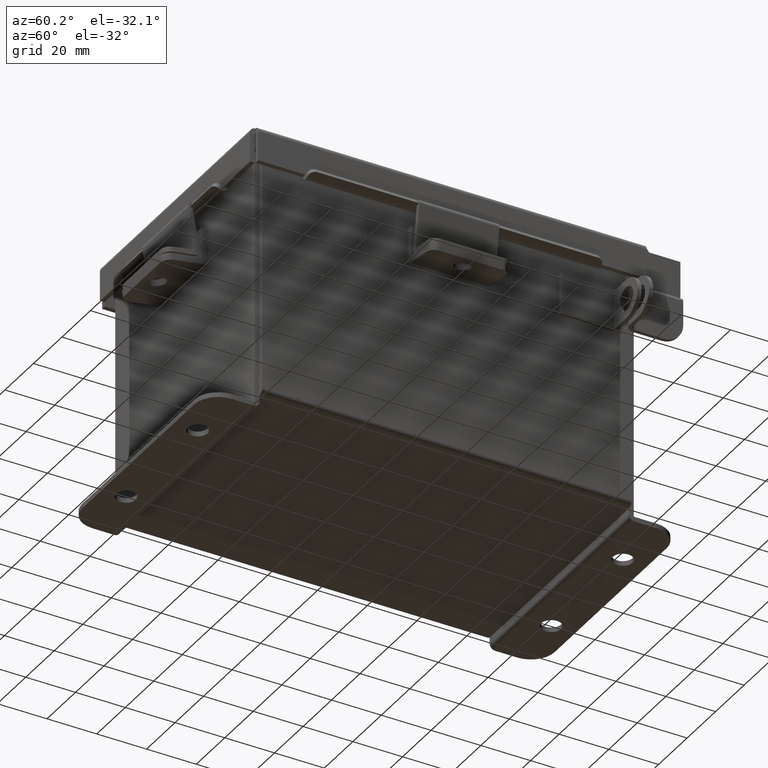
[diagram: clean part render]
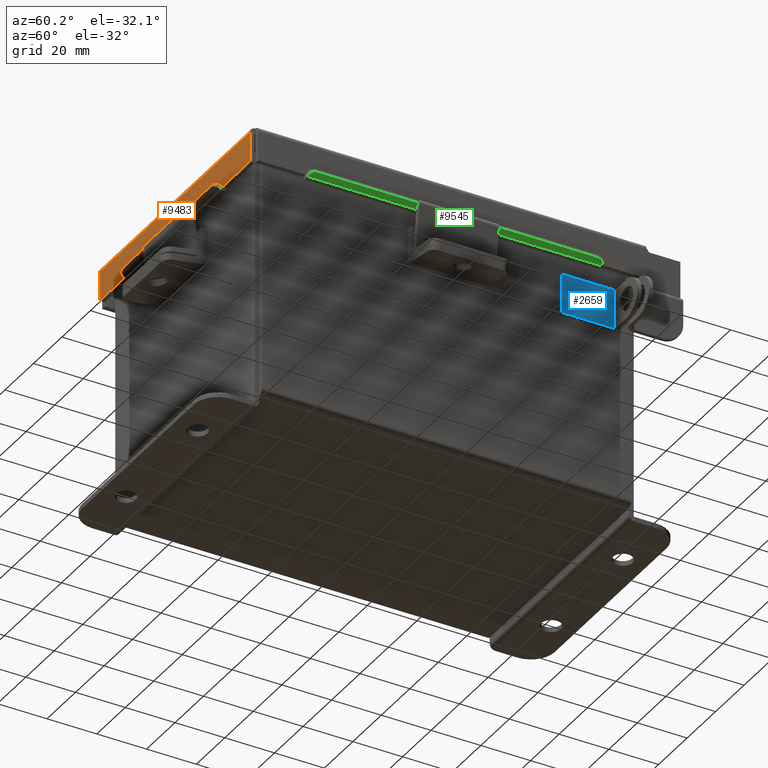
[diagram: same view with three faces highlighted in distinct colors, each labeled with its STEP entity id]
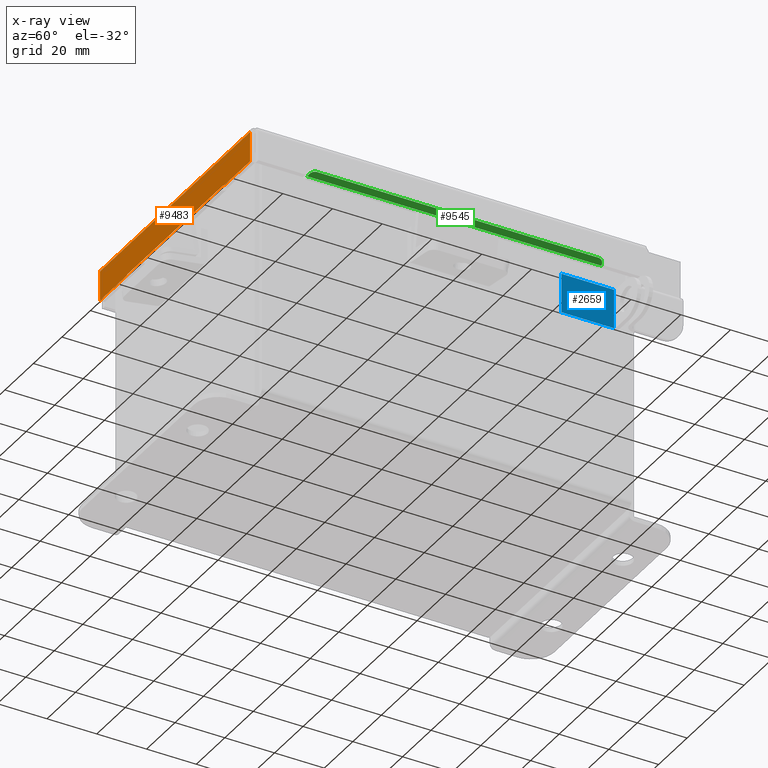
[diagram: x-ray of the same camera — body ghosted, the three highlighted faces saturated]
A machine part, auxiliary view with three faces highlighted in distinct colors.
The next image is the same camera in x-ray (body ghosted, the three faces saturated) — at least one of them is partly hidden behind the body in this view.
Their STEP definitions:

[orange] entity #9483 — the highlighted planar face has unit normal (0, 1, -0).
#28 = CARTESIAN_POINT ( 'NONE',  ( -2.156250000000000400, -3.156250000000000000, 0.01299999999999986400 ) ) ;
#53 = DIRECTION ( 'NONE',  ( -1.000000000000000000, -1.094764425253763600E-047, 1.583679996327109400E-017 ) ) ;
#245 = CARTESIAN_POINT ( 'NONE',  ( -2.074478932188136100, -3.156250000000001800, 0.4872999999999997900 ) ) ;
#318 = VERTEX_POINT ( 'NONE', #6665 ) ;
#362 = VECTOR ( 'NONE', #1654, 39.37007874015748100 ) ;
#467 = EDGE_CURVE ( 'NONE', #8443, #10788, #12384, .T. ) ;
#473 = DIRECTION ( 'NONE',  ( 0.0000000000000000000, 3.504962610060450200E-014, 1.000000000000000000 ) ) ;
#737 = DIRECTION ( 'NONE',  ( -0.0000000000000000000, -3.363654414526078100E-015, 1.000000000000000000 ) ) ;
#1452 = CARTESIAN_POINT ( 'NONE',  ( -1.681319291547108300E-031, -3.156250000000000000, -1.087734790185951700E-014 ) ) ;
#1526 = VECTOR ( 'NONE', #53, 39.37007874015748100 ) ;
#1654 = DIRECTION ( 'NONE',  ( 0.0000000000000000000, -3.363654414526078100E-015, 1.000000000000000000 ) ) ;
#2273 = LINE ( 'NONE', #5760, #7704 ) ;
#2475 = CARTESIAN_POINT ( 'NONE',  ( -1.324478932188136100, -3.156250000000002200, 0.4717115427318800400 ) ) ;
#2569 = DIRECTION ( 'NONE',  ( 0.0000000000000000000, -3.363654414526077700E-015, 1.000000000000000000 ) ) ;
#2608 = VECTOR ( 'NONE', #473, 39.37007874015748100 ) ;
#2626 = VERTEX_POINT ( 'NONE', #5491 ) ;
#2682 = VERTEX_POINT ( 'NONE', #6688 ) ;
#2965 = CARTESIAN_POINT ( 'NONE',  ( -1.324478932188136100, -3.156250000000001800, 0.4872999999999997900 ) ) ;
#3299 = LINE ( 'NONE', #9255, #362 ) ;
#3379 = VECTOR ( 'NONE', #11845, 39.37007874015748100 ) ;
#3500 = EDGE_CURVE ( 'NONE', #318, #4780, #10784, .T. ) ;
#3605 = FACE_OUTER_BOUND ( 'NONE', #10821, .T. ) ;
#3624 = PLANE ( 'NONE',  #12317 ) ;
#4405 = ORIENTED_EDGE ( 'NONE', *, *, #13896, .F. ) ;
#4664 = ORIENTED_EDGE ( 'NONE', *, *, #3500, .F. ) ;
#4673 = DIRECTION ( 'NONE',  ( 1.000000000000000000, 0.0000000000000000000, 0.0000000000000000000 ) ) ;
#4780 = VERTEX_POINT ( 'NONE', #10872 ) ;
#4978 = ORIENTED_EDGE ( 'NONE', *, *, #467, .T. ) ;
#5110 = LINE ( 'NONE', #12663, #13367 ) ;
#5491 = CARTESIAN_POINT ( 'NONE',  ( 2.074478932188135200, -3.156250000000001800, 0.4872999999999997300 ) ) ;
#5506 = DIRECTION ( 'NONE',  ( -1.000000000000000000, 5.326952210842322800E-032, 1.741613323795413600E-046 ) ) ;
#5511 = EDGE_CURVE ( 'NONE', #2682, #2626, #3299, .T. ) ;
#5760 = CARTESIAN_POINT ( 'NONE',  ( -1.324478932188136100, -3.156250000000001800, 0.4872999999999999600 ) ) ;
#6096 = EDGE_CURVE ( 'NONE', #4780, #12791, #9052, .T. ) ;
#6281 = LINE ( 'NONE', #9728, #3379 ) ;
#6646 = CARTESIAN_POINT ( 'NONE',  ( 7.717272622102004900E-018, -3.156250000000001800, 0.4872999999999997900 ) ) ;
#6665 = CARTESIAN_POINT ( 'NONE',  ( -1.324478932188136100, -3.156250000000001800, 0.4717115427318800400 ) ) ;
#6688 = CARTESIAN_POINT ( 'NONE',  ( 2.074478932188134700, -3.156250000000000000, 0.01299999999999986400 ) ) ;
#6854 = DIRECTION ( 'NONE',  ( 0.0000000000000000000, -3.504962610060450200E-014, -1.000000000000000000 ) ) ;
#7249 = ORIENTED_EDGE ( 'NONE', *, *, #10974, .F. ) ;
#7704 = VECTOR ( 'NONE', #6854, 39.37007874015748100 ) ;
#7827 = VECTOR ( 'NONE', #5506, 39.37007874015748100 ) ;
#7904 = VECTOR ( 'NONE', #4673, 39.37007874015748100 ) ;
#7972 = CARTESIAN_POINT ( 'NONE',  ( -2.074478932188136100, -3.156250000000000000, 0.01299999999999985900 ) ) ;
#8443 = VERTEX_POINT ( 'NONE', #2965 ) ;
#8548 = ORIENTED_EDGE ( 'NONE', *, *, #6096, .F. ) ;
#9052 = LINE ( 'NONE', #13676, #2608 ) ;
#9051 = DIRECTION ( 'NONE',  ( 5.326952210842322800E-032, 1.000000000000000000, 3.363654414526077700E-015 ) ) ;
#9255 = CARTESIAN_POINT ( 'NONE',  ( 2.074478932188135200, -3.156250000000000000, -1.087734790185951700E-014 ) ) ;
#9274 = EDGE_CURVE ( 'NONE', #2682, #13310, #13591, .T. ) ;
#9483 = ADVANCED_FACE ( 'NONE', ( #3605 ), #3624, .F. ) ;
#9655 = ORIENTED_EDGE ( 'NONE', *, *, #9274, .F. ) ;
#9728 = CARTESIAN_POINT ( 'NONE',  ( 7.717272622102004900E-018, -3.156250000000001800, 0.4872999999999997900 ) ) ;
#10448 = CARTESIAN_POINT ( 'NONE',  ( 1.324478932188135200, -3.156250000000001800, 0.4872999999999997900 ) ) ;
#10784 = LINE ( 'NONE', #2475, #7904 ) ;
#10788 = VERTEX_POINT ( 'NONE', #245 ) ;
#10821 = EDGE_LOOP ( 'NONE', ( #4405, #4978, #7249, #9655, #13023, #11647, #8548, #4664 ) ) ;
#10872 = CARTESIAN_POINT ( 'NONE',  ( 1.324478932188134900, -3.156250000000001800, 0.4717115427318800400 ) ) ;
#10974 = EDGE_CURVE ( 'NONE', #13310, #10788, #5110, .T. ) ;
#11184 = EDGE_CURVE ( 'NONE', #2626, #12791, #6281, .T. ) ;
#11647 = ORIENTED_EDGE ( 'NONE', *, *, #11184, .T. ) ;
#11845 = DIRECTION ( 'NONE',  ( -1.000000000000000000, -1.094764425253763600E-047, 1.583679996327109400E-017 ) ) ;
#12317 = AXIS2_PLACEMENT_3D ( 'NONE', #1452, #9051, #2569 ) ;
#12384 = LINE ( 'NONE', #6646, #1526 ) ;
#12663 = CARTESIAN_POINT ( 'NONE',  ( -2.074478932188136100, -3.156250000000000000, -2.512649847650985800E-016 ) ) ;
#12791 = VERTEX_POINT ( 'NONE', #10448 ) ;
#13023 = ORIENTED_EDGE ( 'NONE', *, *, #5511, .T. ) ;
#13310 = VERTEX_POINT ( 'NONE', #7972 ) ;
#13367 = VECTOR ( 'NONE', #737, 39.37007874015748100 ) ;
#13591 = LINE ( 'NONE', #28, #7827 ) ;
#13676 = CARTESIAN_POINT ( 'NONE',  ( 1.324478932188134900, -3.156250000000002200, 0.4717115427318800400 ) ) ;
#13896 = EDGE_CURVE ( 'NONE', #8443, #318, #2273, .T. ) ;

[blue] entity #2659 — the highlighted planar face has unit normal (1, 0, -0).
#456 = VECTOR ( 'NONE', #4053, 39.37007874015748100 ) ;
#515 = VERTEX_POINT ( 'NONE', #2347 ) ;
#599 = ORIENTED_EDGE ( 'NONE', *, *, #972, .F. ) ;
#780 = FACE_OUTER_BOUND ( 'NONE', #2353, .T. ) ;
#972 = EDGE_CURVE ( 'NONE', #6104, #2010, #4419, .T. ) ;
#1061 = VECTOR ( 'NONE', #5906, 39.37007874015748100 ) ;
#1187 = DIRECTION ( 'NONE',  ( 0.0000000000000000000, 1.000000000000000000, -1.116328697135877400E-032 ) ) ;
#1515 = VECTOR ( 'NONE', #7421, 39.37007874015748100 ) ;
#1588 = EDGE_CURVE ( 'NONE', #4048, #6104, #9150, .T. ) ;
#2010 = VERTEX_POINT ( 'NONE', #5541 ) ;
#2347 = CARTESIAN_POINT ( 'NONE',  ( 0.6250000000000000000, 0.0000000000000000000, -0.8499999999999949800 ) ) ;
#2353 = EDGE_LOOP ( 'NONE', ( #599, #6077, #10669, #10804 ) ) ;
#2659 = ADVANCED_FACE ( 'NONE', ( #780 ), #13086, .T. ) ;
#3291 = DIRECTION ( 'NONE',  ( -1.000000000000000000, 0.0000000000000000000, 0.0000000000000000000 ) ) ;
#3720 = CARTESIAN_POINT ( 'NONE',  ( 0.6250000000000000000, 0.0000000000000000000, 0.0000000000000000000 ) ) ;
#3743 = VECTOR ( 'NONE', #3291, 39.37007874015748100 ) ;
#3998 = LINE ( 'NONE', #3720, #1061 ) ;
#4048 = VERTEX_POINT ( 'NONE', #11976 ) ;
#4053 = DIRECTION ( 'NONE',  ( -1.000000000000000000, 0.0000000000000000000, 0.0000000000000000000 ) ) ;
#4414 = LINE ( 'NONE', #8693, #3743 ) ;
#4419 = LINE ( 'NONE', #6351, #1515 ) ;
#5419 = EDGE_CURVE ( 'NONE', #4048, #515, #3998, .T. ) ;
#5530 = CARTESIAN_POINT ( 'NONE',  ( 0.6250000000000000000, 0.0000000000000000000, 0.0000000000000000000 ) ) ;
#5541 = CARTESIAN_POINT ( 'NONE',  ( 0.0000000000000000000, 0.0000000000000000000, -0.8499999999999975400 ) ) ;
#5906 = DIRECTION ( 'NONE',  ( 0.0000000000000000000, -1.116328697135877400E-032, -1.000000000000000000 ) ) ;
#6077 = ORIENTED_EDGE ( 'NONE', *, *, #1588, .F. ) ;
#6104 = VERTEX_POINT ( 'NONE', #10240 ) ;
#6237 = CARTESIAN_POINT ( 'NONE',  ( 0.6250000000000000000, 0.0000000000000000000, -0.01300000000000010700 ) ) ;
#6351 = CARTESIAN_POINT ( 'NONE',  ( 0.0000000000000000000, 0.0000000000000000000, 0.0000000000000000000 ) ) ;
#7421 = DIRECTION ( 'NONE',  ( 0.0000000000000000000, -1.116328697135877400E-032, -1.000000000000000000 ) ) ;
#8693 = CARTESIAN_POINT ( 'NONE',  ( 0.6250000000000000000, 0.0000000000000000000, -0.8499999999999949800 ) ) ;
#8803 = DIRECTION ( 'NONE',  ( 0.0000000000000000000, 1.116328697135877400E-032, 1.000000000000000000 ) ) ;
#9150 = LINE ( 'NONE', #6237, #456 ) ;
#9871 = AXIS2_PLACEMENT_3D ( 'NONE', #5530, #1187, #8803 ) ;
#10240 = CARTESIAN_POINT ( 'NONE',  ( 0.0000000000000000000, 0.0000000000000000000, -0.01300000000000010700 ) ) ;
#10593 = EDGE_CURVE ( 'NONE', #515, #2010, #4414, .T. ) ;
#10669 = ORIENTED_EDGE ( 'NONE', *, *, #5419, .T. ) ;
#10804 = ORIENTED_EDGE ( 'NONE', *, *, #10593, .T. ) ;
#11976 = CARTESIAN_POINT ( 'NONE',  ( 0.6250000000000000000, 0.0000000000000000000, -0.01300000000000010700 ) ) ;
#13086 = PLANE ( 'NONE',  #9871 ) ;

[green] entity #9545 — the highlighted planar face has unit normal (-0.5, -0, 0.866).
#266 = CARTESIAN_POINT ( 'NONE',  ( -2.193600000000002700, -2.324478932188135200, 0.5519920976626970800 ) ) ;
#422 = VERTEX_POINT ( 'NONE', #14080 ) ;
#593 = CARTESIAN_POINT ( 'NONE',  ( -2.298056350946112500, 2.224478932188135500, 0.4916841953253944200 ) ) ;
#645 = CARTESIAN_POINT ( 'NONE',  ( -2.211453810567668700, -2.224478932188135100, 0.5416841953253945800 ) ) ;
#798 = ORIENTED_EDGE ( 'NONE', *, *, #11923, .T. ) ;
#1288 = LINE ( 'NONE', #266, #3878 ) ;
#1378 = LINE ( 'NONE', #3816, #6849 ) ;
#1388 = DIRECTION ( 'NONE',  ( 0.8660254037844379300, -0.0000000000000000000, 0.5000000000000012200 ) ) ;
#1756 = DIRECTION ( 'NONE',  ( -0.8660254037844379300, 0.0000000000000000000, -0.5000000000000012200 ) ) ;
#2445 = EDGE_CURVE ( 'NONE', #5131, #8848, #2513, .T. ) ;
#2513 = CIRCLE ( 'NONE', #13519, 0.1000000000000000600 ) ;
#2727 = DIRECTION ( 'NONE',  ( 5.088989469919020400E-017, -1.000000000000000000, 2.938129440360927100E-017 ) ) ;
#2882 = CIRCLE ( 'NONE', #12655, 0.1000000000000000600 ) ;
#2936 = CARTESIAN_POINT ( 'NONE',  ( -2.211453810567668700, 2.224478932188135500, 0.5416841953253944700 ) ) ;
#3758 = PLANE ( 'NONE',  #11593 ) ;
#3816 = CARTESIAN_POINT ( 'NONE',  ( -2.207100000000002300, -9.632984878683562000E-017, 0.5441978690286370900 ) ) ;
#3878 = VECTOR ( 'NONE', #1388, 39.37007874015748100 ) ;
#4019 = ORIENTED_EDGE ( 'NONE', *, *, #7369, .T. ) ;
#4037 = DIRECTION ( 'NONE',  ( -0.8660254037844379300, 2.731847993664261600E-015, -0.5000000000000012200 ) ) ;
#4143 = CARTESIAN_POINT ( 'NONE',  ( -2.207100000000003200, -2.324478932188135200, 0.5441978690286367600 ) ) ;
#5131 = VERTEX_POINT ( 'NONE', #8283 ) ;
#5947 = DIRECTION ( 'NONE',  ( 0.5000000000000012200, 0.0000000000000000000, -0.8660254037844379300 ) ) ;
#6312 = VECTOR ( 'NONE', #12250, 39.37007874015748100 ) ;
#6343 = CARTESIAN_POINT ( 'NONE',  ( -2.207100000000002700, 2.324478932188135600, 0.5441978690286368700 ) ) ;
#6557 = ORIENTED_EDGE ( 'NONE', *, *, #8788, .F. ) ;
#6849 = VECTOR ( 'NONE', #2727, 39.37007874015748100 ) ;
#6988 = CARTESIAN_POINT ( 'NONE',  ( -0.7874195896320819200, 0.0000000000000000000, 1.363850736117796900 ) ) ;
#7265 = VERTEX_POINT ( 'NONE', #4143 ) ;
#7323 = EDGE_LOOP ( 'NONE', ( #12987, #7535, #798, #6557, #4019, #11196 ) ) ;
#7369 = EDGE_CURVE ( 'NONE', #9092, #5131, #8512, .T. ) ;
#7535 = ORIENTED_EDGE ( 'NONE', *, *, #10908, .T. ) ;
#7650 = FACE_OUTER_BOUND ( 'NONE', #7323, .T. ) ;
#8274 = DIRECTION ( 'NONE',  ( -0.5000000000000012200, -0.0000000000000000000, 0.8660254037844379300 ) ) ;
#8283 = CARTESIAN_POINT ( 'NONE',  ( -2.211453810567668700, 2.324478932188135600, 0.5416841953253945800 ) ) ;
#8512 = LINE ( 'NONE', #10801, #11041 ) ;
#8660 = CARTESIAN_POINT ( 'NONE',  ( -2.211453810567668700, -2.324478932188135200, 0.5416841953253945800 ) ) ;
#8788 = EDGE_CURVE ( 'NONE', #9092, #7265, #1378, .T. ) ;
#8848 = VERTEX_POINT ( 'NONE', #593 ) ;
#8991 = CARTESIAN_POINT ( 'NONE',  ( -2.298056350946112500, -2.324478932188135200, 0.4916841953253944200 ) ) ;
#9092 = VERTEX_POINT ( 'NONE', #6343 ) ;
#9545 = ADVANCED_FACE ( 'NONE', ( #7650 ), #3758, .F. ) ;
#10120 = EDGE_CURVE ( 'NONE', #8848, #422, #12379, .T. ) ;
#10521 = DIRECTION ( 'NONE',  ( -0.5000000000000012200, -0.0000000000000000000, 0.8660254037844379300 ) ) ;
#10801 = CARTESIAN_POINT ( 'NONE',  ( -2.298056350946112500, 2.324478932188135600, 0.4916841953253944200 ) ) ;
#10908 = EDGE_CURVE ( 'NONE', #422, #11826, #2882, .T. ) ;
#11041 = VECTOR ( 'NONE', #12964, 39.37007874015748900 ) ;
#11196 = ORIENTED_EDGE ( 'NONE', *, *, #2445, .T. ) ;
#11593 = AXIS2_PLACEMENT_3D ( 'NONE', #6988, #5947, #13488 ) ;
#11826 = VERTEX_POINT ( 'NONE', #8660 ) ;
#11923 = EDGE_CURVE ( 'NONE', #11826, #7265, #1288, .T. ) ;
#12250 = DIRECTION ( 'NONE',  ( -0.0000000000000000000, -1.000000000000000000, -0.0000000000000000000 ) ) ;
#12379 = LINE ( 'NONE', #8991, #6312 ) ;
#12655 = AXIS2_PLACEMENT_3D ( 'NONE', #645, #8274, #1756 ) ;
#12964 = DIRECTION ( 'NONE',  ( -0.8660254037844377100, -0.0000000000000000000, -0.5000000000000012200 ) ) ;
#12987 = ORIENTED_EDGE ( 'NONE', *, *, #10120, .T. ) ;
#13488 = DIRECTION ( 'NONE',  ( -0.8660254037844379300, 0.0000000000000000000, -0.5000000000000012200 ) ) ;
#13519 = AXIS2_PLACEMENT_3D ( 'NONE', #2936, #10521, #4037 ) ;
#14080 = CARTESIAN_POINT ( 'NONE',  ( -2.298056350946112500, -2.224478932188135100, 0.4916841953253944200 ) ) ;